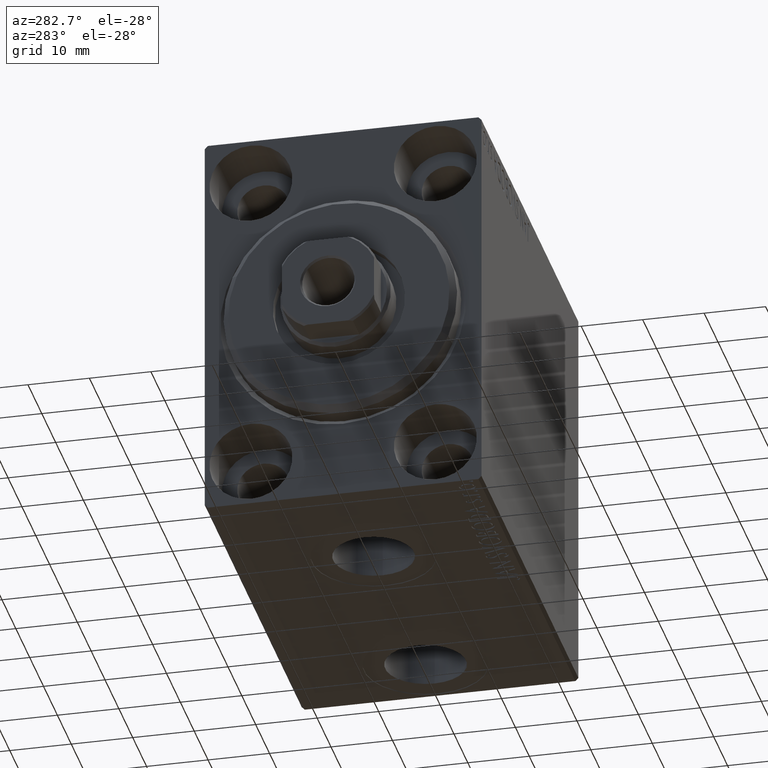
[diagram: clean part render]
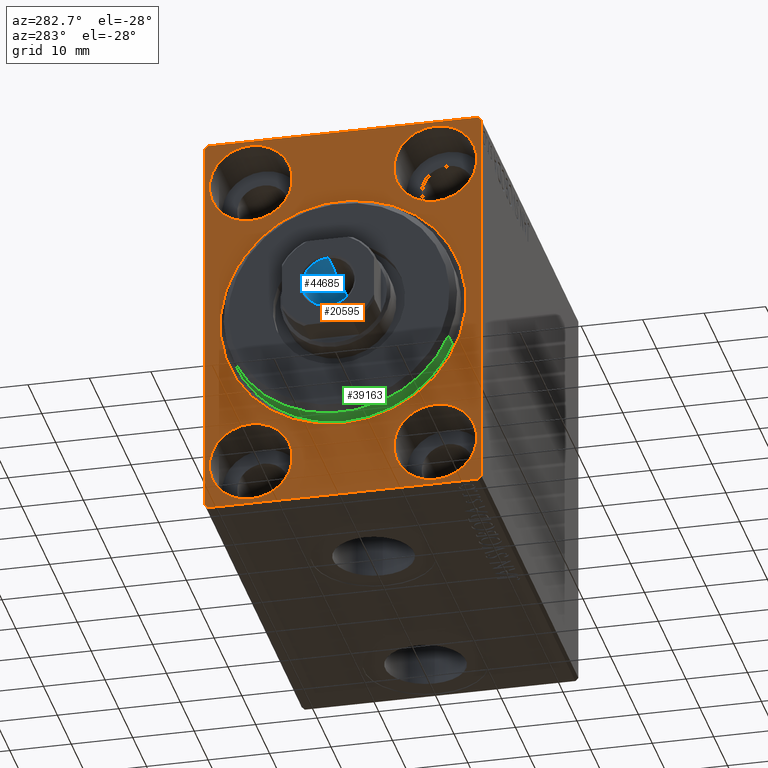
[diagram: same view with three faces highlighted in distinct colors, each labeled with its STEP entity id]
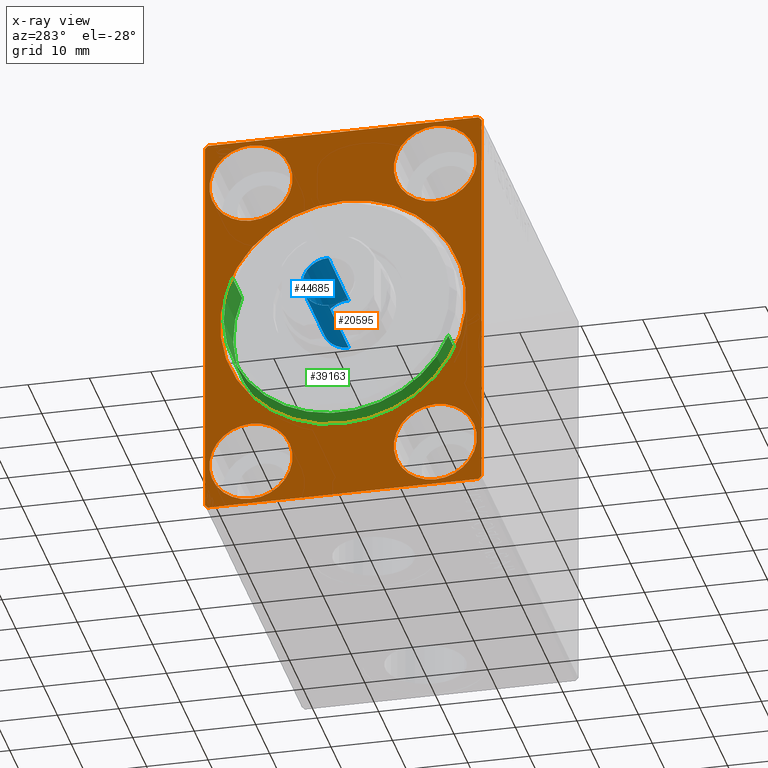
[diagram: x-ray of the same camera — body ghosted, the three highlighted faces saturated]
A machine part, auxiliary view with three faces highlighted in distinct colors.
The next image is the same camera in x-ray (body ghosted, the three faces saturated) — at least one of them is partly hidden behind the body in this view.
Their STEP definitions:

[orange] entity #20595 — the highlighted planar face has unit normal (1, 0, 0).
#25 = FACE_BOUND ( 'NONE', #13236, .T. ) ;
#105 = CARTESIAN_POINT ( 'NONE',  ( 0.000000000000000000, -22.50000000000000711, 32.49999999999999289 ) ) ;
#438 = VERTEX_POINT ( 'NONE', #30327 ) ;
#471 = ORIENTED_EDGE ( 'NONE', *, *, #28837, .T. ) ;
#764 = EDGE_CURVE ( 'NONE', #438, #13994, #29210, .T. ) ;
#775 = AXIS2_PLACEMENT_3D ( 'NONE', #10589, #24300, #31137 ) ;
#994 = VERTEX_POINT ( 'NONE', #13323 ) ;
#1001 = DIRECTION ( 'NONE',  ( 0.000000000000000000, 1.000000000000000000, 0.000000000000000000 ) ) ;
#1131 = AXIS2_PLACEMENT_3D ( 'NONE', #28490, #39896, #39226 ) ;
#1369 = ORIENTED_EDGE ( 'NONE', *, *, #23158, .F. ) ;
#1471 = EDGE_CURVE ( 'NONE', #14361, #9078, #20509, .T. ) ;
#1853 = ORIENTED_EDGE ( 'NONE', *, *, #44221, .F. ) ;
#2212 = CARTESIAN_POINT ( 'NONE',  ( 0.000000000000000000, -15.00000000000000355, -25.00000000000000000 ) ) ;
#2374 = VERTEX_POINT ( 'NONE', #3102 ) ;
#2830 = CARTESIAN_POINT ( 'NONE',  ( 0.000000000000000000, 14.99999999999999645, -25.00000000000000000 ) ) ;
#3009 = FACE_BOUND ( 'NONE', #25467, .T. ) ;
#3102 = CARTESIAN_POINT ( 'NONE',  ( 0.000000000000000000, 22.00000000000001421, -32.50000000000000711 ) ) ;
#3116 = VERTEX_POINT ( 'NONE', #16850 ) ;
#3797 = CIRCLE ( 'NONE', #5254, 6.749999999999999112 ) ;
#3972 = CARTESIAN_POINT ( 'NONE',  ( 0.000000000000000000, 22.50000000000000000, -32.00000000000002132 ) ) ;
#4108 = EDGE_CURVE ( 'NONE', #20190, #6602, #10938, .T. ) ;
#4603 = DIRECTION ( 'NONE',  ( 1.000000000000000000, 0.000000000000000000, 0.000000000000000000 ) ) ;
#4786 = CIRCLE ( 'NONE', #1131, 6.749999999999999112 ) ;
#4806 = CARTESIAN_POINT ( 'NONE',  ( 0.000000000000000000, 15.00000000000000355, 25.00000000000000000 ) ) ;
#4841 = LINE ( 'NONE', #8283, #14882 ) ;
#5165 = DIRECTION ( 'NONE',  ( -1.000000000000000000, 0.000000000000000000, 0.000000000000000000 ) ) ;
#5254 = AXIS2_PLACEMENT_3D ( 'NONE', #2830, #16787, #30704 ) ;
#5307 = CARTESIAN_POINT ( 'NONE',  ( 0.000000000000000000, 22.50000000000000000, -32.00000000000002132 ) ) ;
#5613 = CARTESIAN_POINT ( 'NONE',  ( 0.000000000000000000, 14.99999999999999645, -18.25000000000000355 ) ) ;
#5892 = DIRECTION ( 'NONE',  ( 0.000000000000000000, 0.000000000000000000, 1.000000000000000000 ) ) ;
#6124 = VECTOR ( 'NONE', #1001, 1000.000000000000000 ) ;
#6602 = VERTEX_POINT ( 'NONE', #35975 ) ;
#6914 = ORIENTED_EDGE ( 'NONE', *, *, #34521, .F. ) ;
#7119 = DIRECTION ( 'NONE',  ( 0.000000000000000000, 0.000000000000000000, -1.000000000000000000 ) ) ;
#7415 = CARTESIAN_POINT ( 'NONE',  ( 0.000000000000000000, -15.00000000000000355, -18.25000000000000355 ) ) ;
#7507 = CARTESIAN_POINT ( 'NONE',  ( 0.000000000000000000, -22.50000000000000711, 31.99999999999999289 ) ) ;
#8044 = CARTESIAN_POINT ( 'NONE',  ( 0.000000000000000000, 0.000000000000000000, 0.000000000000000000 ) ) ;
#8129 = VECTOR ( 'NONE', #21210, 1000.000000000000114 ) ;
#8283 = CARTESIAN_POINT ( 'NONE',  ( 0.000000000000000000, 21.99999999999999289, 32.50000000000000000 ) ) ;
#8906 = CARTESIAN_POINT ( 'NONE',  ( 0.000000000000000000, -14.99999999999999645, 31.75000000000000000 ) ) ;
#9032 = EDGE_LOOP ( 'NONE', ( #40806, #21583 ) ) ;
#9074 = CARTESIAN_POINT ( 'NONE',  ( 0.000000000000000000, -14.99999999999999645, 18.25000000000000355 ) ) ;
#9078 = VERTEX_POINT ( 'NONE', #7415 ) ;
#9104 = DIRECTION ( 'NONE',  ( 0.000000000000000000, 0.000000000000000000, 1.000000000000000000 ) ) ;
#9307 = LINE ( 'NONE', #12951, #10469 ) ;
#10369 = VERTEX_POINT ( 'NONE', #12145 ) ;
#10469 = VECTOR ( 'NONE', #16388, 1000.000000000000000 ) ;
#10565 = CARTESIAN_POINT ( 'NONE',  ( 0.000000000000000000, 0.000000000000000000, 0.000000000000000000 ) ) ;
#10589 = CARTESIAN_POINT ( 'NONE',  ( 0.000000000000000000, -15.00000000000000355, -25.00000000000000000 ) ) ;
#10592 = ORIENTED_EDGE ( 'NONE', *, *, #24514, .F. ) ;
#10938 = LINE ( 'NONE', #7507, #8129 ) ;
#11108 = LINE ( 'NONE', #20947, #40282 ) ;
#11742 = ORIENTED_EDGE ( 'NONE', *, *, #17766, .F. ) ;
#12145 = CARTESIAN_POINT ( 'NONE',  ( 0.000000000000000000, -22.00000000000002132, -32.50000000000000711 ) ) ;
#12450 = EDGE_LOOP ( 'NONE', ( #25846, #12895, #12823, #22496, #33010, #20453, #1853, #471 ) ) ;
#12823 = ORIENTED_EDGE ( 'NONE', *, *, #35278, .F. ) ;
#12895 = ORIENTED_EDGE ( 'NONE', *, *, #4108, .T. ) ;
#12951 = CARTESIAN_POINT ( 'NONE',  ( 0.000000000000000000, -22.00000000000002132, -32.50000000000000711 ) ) ;
#13217 = EDGE_CURVE ( 'NONE', #14030, #2374, #35275, .T. ) ;
#13236 = EDGE_LOOP ( 'NONE', ( #43657, #6914 ) ) ;
#13323 = CARTESIAN_POINT ( 'NONE',  ( 0.000000000000000000, -22.50000000000000711, -32.00000000000000711 ) ) ;
#13959 = CIRCLE ( 'NONE', #38765, 6.749999999999999112 ) ;
#13994 = VERTEX_POINT ( 'NONE', #5613 ) ;
#14030 = VERTEX_POINT ( 'NONE', #5307 ) ;
#14051 = AXIS2_PLACEMENT_3D ( 'NONE', #33043, #5165, #33268 ) ;
#14361 = VERTEX_POINT ( 'NONE', #44809 ) ;
#14720 = DIRECTION ( 'NONE',  ( 0.000000000000000000, 0.000000000000000000, -1.000000000000000000 ) ) ;
#14751 = DIRECTION ( 'NONE',  ( 0.000000000000000000, -1.067522139062650425E-16, 1.000000000000000000 ) ) ;
#14794 = CARTESIAN_POINT ( 'NONE',  ( 0.000000000000000000, 0.000000000000000000, 20.00000000000000355 ) ) ;
#14882 = VECTOR ( 'NONE', #43000, 999.9999999999998863 ) ;
#15603 = AXIS2_PLACEMENT_3D ( 'NONE', #17468, #21327, #38021 ) ;
#15636 = LINE ( 'NONE', #26137, #6124 ) ;
#16388 = DIRECTION ( 'NONE',  ( -0.000000000000000000, -0.7071067811865378028, 0.7071067811865573427 ) ) ;
#16787 = DIRECTION ( 'NONE',  ( -1.000000000000000000, 0.000000000000000000, 0.000000000000000000 ) ) ;
#16850 = CARTESIAN_POINT ( 'NONE',  ( 0.000000000000000000, 22.49999999999999289, 31.99999999999999289 ) ) ;
#17468 = CARTESIAN_POINT ( 'NONE',  ( 0.000000000000000000, 0.000000000000000000, 0.000000000000000000 ) ) ;
#17587 = CIRCLE ( 'NONE', #44584, 6.749999999999999112 ) ;
#17766 = EDGE_CURVE ( 'NONE', #9078, #14361, #17587, .T. ) ;
#17770 = CIRCLE ( 'NONE', #25775, 20.00000000000000355 ) ;
#18504 = EDGE_CURVE ( 'NONE', #30342, #42224, #13959, .T. ) ;
#18557 = DIRECTION ( 'NONE',  ( 0.000000000000000000, 0.000000000000000000, -1.000000000000000000 ) ) ;
#18755 = DIRECTION ( 'NONE',  ( -1.000000000000000000, 0.000000000000000000, 0.000000000000000000 ) ) ;
#19018 = AXIS2_PLACEMENT_3D ( 'NONE', #42356, #24779, #31844 ) ;
#20120 = VECTOR ( 'NONE', #36020, 1000.000000000000000 ) ;
#20190 = VERTEX_POINT ( 'NONE', #37345 ) ;
#20453 = ORIENTED_EDGE ( 'NONE', *, *, #13217, .T. ) ;
#20455 = DIRECTION ( 'NONE',  ( 0.000000000000000000, -0.7071067811865376918, -0.7071067811865573427 ) ) ;
#20509 = CIRCLE ( 'NONE', #775, 6.749999999999999112 ) ;
#20595 = ADVANCED_FACE ( 'NONE', ( #34313, #31339, #37754, #25, #3009, #27919 ), #41186, .F. ) ;
#20706 = CARTESIAN_POINT ( 'NONE',  ( 0.000000000000000000, -14.99999999999999645, 25.00000000000000000 ) ) ;
#20947 = CARTESIAN_POINT ( 'NONE',  ( 0.000000000000000000, 22.50000000000000000, -32.50000000000000711 ) ) ;
#21210 = DIRECTION ( 'NONE',  ( -0.000000000000000000, 0.7071067811865474617, 0.7071067811865474617 ) ) ;
#21327 = DIRECTION ( 'NONE',  ( 1.000000000000000000, 0.000000000000000000, 0.000000000000000000 ) ) ;
#21583 = ORIENTED_EDGE ( 'NONE', *, *, #30070, .T. ) ;
#22312 = CIRCLE ( 'NONE', #30372, 6.749999999999999112 ) ;
#22433 = EDGE_CURVE ( 'NONE', #20190, #994, #38716, .T. ) ;
#22496 = ORIENTED_EDGE ( 'NONE', *, *, #30267, .T. ) ;
#23158 = EDGE_CURVE ( 'NONE', #43860, #29714, #33738, .T. ) ;
#23699 = DIRECTION ( 'NONE',  ( 0.000000000000000000, 0.000000000000000000, 1.000000000000000000 ) ) ;
#24300 = DIRECTION ( 'NONE',  ( -1.000000000000000000, 0.000000000000000000, 0.000000000000000000 ) ) ;
#24514 = EDGE_CURVE ( 'NONE', #13994, #438, #3797, .T. ) ;
#24548 = VERTEX_POINT ( 'NONE', #27962 ) ;
#24688 = CARTESIAN_POINT ( 'NONE',  ( 0.000000000000000000, 21.99999999999999289, 32.50000000000000000 ) ) ;
#24750 = VECTOR ( 'NONE', #20455, 1000.000000000000114 ) ;
#24779 = DIRECTION ( 'NONE',  ( -1.000000000000000000, 0.000000000000000000, 0.000000000000000000 ) ) ;
#25467 = EDGE_LOOP ( 'NONE', ( #11742, #34260 ) ) ;
#25775 = AXIS2_PLACEMENT_3D ( 'NONE', #8044, #4603, #18557 ) ;
#25846 = ORIENTED_EDGE ( 'NONE', *, *, #22433, .F. ) ;
#26137 = CARTESIAN_POINT ( 'NONE',  ( 0.000000000000000000, -22.50000000000000711, -32.50000000000000711 ) ) ;
#26995 = EDGE_CURVE ( 'NONE', #14030, #3116, #11108, .T. ) ;
#27919 = FACE_OUTER_BOUND ( 'NONE', #12450, .T. ) ;
#27962 = CARTESIAN_POINT ( 'NONE',  ( 0.000000000000000000, 2.449293598294706907E-15, -20.00000000000000355 ) ) ;
#28490 = CARTESIAN_POINT ( 'NONE',  ( 0.000000000000000000, 15.00000000000000355, 25.00000000000000000 ) ) ;
#28664 = VERTEX_POINT ( 'NONE', #14794 ) ;
#28837 = EDGE_CURVE ( 'NONE', #10369, #994, #9307, .T. ) ;
#28944 = CARTESIAN_POINT ( 'NONE',  ( 0.000000000000000000, 22.49999999999999289, 32.50000000000000000 ) ) ;
#29210 = CIRCLE ( 'NONE', #19018, 6.749999999999999112 ) ;
#29291 = EDGE_CURVE ( 'NONE', #28664, #24548, #17770, .T. ) ;
#29637 = DIRECTION ( 'NONE',  ( -1.000000000000000000, 0.000000000000000000, 0.000000000000000000 ) ) ;
#29714 = VERTEX_POINT ( 'NONE', #8906 ) ;
#30070 = EDGE_CURVE ( 'NONE', #24548, #28664, #44823, .T. ) ;
#30267 = EDGE_CURVE ( 'NONE', #34157, #3116, #4841, .T. ) ;
#30327 = CARTESIAN_POINT ( 'NONE',  ( 0.000000000000000000, 14.99999999999999645, -31.75000000000000000 ) ) ;
#30342 = VERTEX_POINT ( 'NONE', #40487 ) ;
#30372 = AXIS2_PLACEMENT_3D ( 'NONE', #20706, #41047, #23699 ) ;
#30704 = DIRECTION ( 'NONE',  ( 0.000000000000000000, 0.000000000000000000, 1.000000000000000000 ) ) ;
#31137 = DIRECTION ( 'NONE',  ( 0.000000000000000000, 0.000000000000000000, 1.000000000000000000 ) ) ;
#31339 = FACE_BOUND ( 'NONE', #44550, .T. ) ;
#31844 = DIRECTION ( 'NONE',  ( 0.000000000000000000, 0.000000000000000000, 1.000000000000000000 ) ) ;
#32220 = AXIS2_PLACEMENT_3D ( 'NONE', #10565, #38423, #7119 ) ;
#33010 = ORIENTED_EDGE ( 'NONE', *, *, #26995, .F. ) ;
#33043 = CARTESIAN_POINT ( 'NONE',  ( 0.000000000000000000, -14.99999999999999645, 25.00000000000000000 ) ) ;
#33195 = CARTESIAN_POINT ( 'NONE',  ( 0.000000000000000000, 15.00000000000000355, 18.25000000000000355 ) ) ;
#33268 = DIRECTION ( 'NONE',  ( 0.000000000000000000, 0.000000000000000000, 1.000000000000000000 ) ) ;
#33559 = ORIENTED_EDGE ( 'NONE', *, *, #764, .F. ) ;
#33738 = CIRCLE ( 'NONE', #14051, 6.749999999999999112 ) ;
#34157 = VERTEX_POINT ( 'NONE', #24688 ) ;
#34260 = ORIENTED_EDGE ( 'NONE', *, *, #1471, .F. ) ;
#34313 = FACE_BOUND ( 'NONE', #9032, .T. ) ;
#34521 = EDGE_CURVE ( 'NONE', #42224, #30342, #4786, .T. ) ;
#35252 = EDGE_LOOP ( 'NONE', ( #40657, #1369 ) ) ;
#35275 = LINE ( 'NONE', #3972, #24750 ) ;
#35278 = EDGE_CURVE ( 'NONE', #34157, #6602, #43555, .T. ) ;
#35975 = CARTESIAN_POINT ( 'NONE',  ( 0.000000000000000000, -21.99999999999999289, 32.49999999999999289 ) ) ;
#36020 = DIRECTION ( 'NONE',  ( 0.000000000000000000, -1.000000000000000000, -1.541976423090495387E-16 ) ) ;
#36366 = EDGE_CURVE ( 'NONE', #29714, #43860, #22312, .T. ) ;
#37345 = CARTESIAN_POINT ( 'NONE',  ( 0.000000000000000000, -22.50000000000000711, 31.99999999999999289 ) ) ;
#37754 = FACE_BOUND ( 'NONE', #35252, .T. ) ;
#38021 = DIRECTION ( 'NONE',  ( 0.000000000000000000, 0.000000000000000000, -1.000000000000000000 ) ) ;
#38423 = DIRECTION ( 'NONE',  ( 1.000000000000000000, 0.000000000000000000, 0.000000000000000000 ) ) ;
#38716 = LINE ( 'NONE', #105, #41778 ) ;
#38765 = AXIS2_PLACEMENT_3D ( 'NONE', #4806, #18755, #5892 ) ;
#39226 = DIRECTION ( 'NONE',  ( 0.000000000000000000, 0.000000000000000000, 1.000000000000000000 ) ) ;
#39896 = DIRECTION ( 'NONE',  ( -1.000000000000000000, 0.000000000000000000, 0.000000000000000000 ) ) ;
#40282 = VECTOR ( 'NONE', #14751, 1000.000000000000000 ) ;
#40487 = CARTESIAN_POINT ( 'NONE',  ( 0.000000000000000000, 15.00000000000000355, 31.75000000000000000 ) ) ;
#40657 = ORIENTED_EDGE ( 'NONE', *, *, #36366, .F. ) ;
#40806 = ORIENTED_EDGE ( 'NONE', *, *, #29291, .T. ) ;
#41047 = DIRECTION ( 'NONE',  ( -1.000000000000000000, 0.000000000000000000, 0.000000000000000000 ) ) ;
#41186 = PLANE ( 'NONE',  #32220 ) ;
#41778 = VECTOR ( 'NONE', #14720, 1000.000000000000000 ) ;
#42224 = VERTEX_POINT ( 'NONE', #33195 ) ;
#42356 = CARTESIAN_POINT ( 'NONE',  ( 0.000000000000000000, 14.99999999999999645, -25.00000000000000000 ) ) ;
#43000 = DIRECTION ( 'NONE',  ( -0.000000000000000000, 0.7071067811865425767, -0.7071067811865525687 ) ) ;
#43555 = LINE ( 'NONE', #28944, #20120 ) ;
#43657 = ORIENTED_EDGE ( 'NONE', *, *, #18504, .F. ) ;
#43860 = VERTEX_POINT ( 'NONE', #9074 ) ;
#44221 = EDGE_CURVE ( 'NONE', #10369, #2374, #15636, .T. ) ;
#44550 = EDGE_LOOP ( 'NONE', ( #10592, #33559 ) ) ;
#44584 = AXIS2_PLACEMENT_3D ( 'NONE', #2212, #29637, #9104 ) ;
#44809 = CARTESIAN_POINT ( 'NONE',  ( 0.000000000000000000, -15.00000000000000355, -31.75000000000000000 ) ) ;
#44823 = CIRCLE ( 'NONE', #15603, 20.00000000000000355 ) ;

[blue] entity #44685 — the highlighted cylindrical surface (edge-blend (fillet) strip) has radius 4.25 mm, axis along (-1, 0, 0).
#1351 = VERTEX_POINT ( 'NONE', #32573 ) ;
#2185 = DIRECTION ( 'NONE',  ( -0.000000000000000000, -0.000000000000000000, 1.000000000000000000 ) ) ;
#2346 = VECTOR ( 'NONE', #2185, 1000.000000000000000 ) ;
#3085 = DIRECTION ( 'NONE',  ( -0.000000000000000000, -0.000000000000000000, 1.000000000000000000 ) ) ;
#4715 = CARTESIAN_POINT ( 'NONE',  ( 4.249999999999997335, 0.000000000000000000, 75.00000000000001421 ) ) ;
#10596 = VECTOR ( 'NONE', #3085, 1000.000000000000000 ) ;
#13160 = DIRECTION ( 'NONE',  ( 1.000000000000000000, 0.000000000000000000, 0.000000000000000000 ) ) ;
#16990 = DIRECTION ( 'NONE',  ( 1.000000000000000000, 0.000000000000000000, 0.000000000000000000 ) ) ;
#17897 = VERTEX_POINT ( 'NONE', #38761 ) ;
#18635 = CIRCLE ( 'NONE', #19350, 4.249999999999997335 ) ;
#19350 = AXIS2_PLACEMENT_3D ( 'NONE', #30449, #30917, #16990 ) ;
#23121 = EDGE_CURVE ( 'NONE', #1351, #43984, #33491, .T. ) ;
#25036 = CIRCLE ( 'NONE', #42537, 4.249999999999996447 ) ;
#26240 = DIRECTION ( 'NONE',  ( -0.000000000000000000, -0.000000000000000000, 1.000000000000000000 ) ) ;
#26711 = FACE_OUTER_BOUND ( 'NONE', #36904, .T. ) ;
#28205 = VERTEX_POINT ( 'NONE', #40978 ) ;
#30449 = CARTESIAN_POINT ( 'NONE',  ( 0.000000000000000000, 0.000000000000000000, 74.70000000000001705 ) ) ;
#30917 = DIRECTION ( 'NONE',  ( 0.000000000000000000, 0.000000000000000000, 1.000000000000000000 ) ) ;
#32036 = ORIENTED_EDGE ( 'NONE', *, *, #43059, .F. ) ;
#32573 = CARTESIAN_POINT ( 'NONE',  ( 4.249999999999996447, 0.000000000000000000, 60.00000000000001421 ) ) ;
#33473 = EDGE_CURVE ( 'NONE', #17897, #28205, #44459, .T. ) ;
#33491 = LINE ( 'NONE', #4715, #2346 ) ;
#33722 = EDGE_CURVE ( 'NONE', #43984, #28205, #18635, .T. ) ;
#33947 = DIRECTION ( 'NONE',  ( -0.000000000000000000, -0.000000000000000000, 1.000000000000000000 ) ) ;
#34180 = CARTESIAN_POINT ( 'NONE',  ( 4.249999999999997335, 0.000000000000000000, 74.70000000000001705 ) ) ;
#36251 = ORIENTED_EDGE ( 'NONE', *, *, #33722, .T. ) ;
#36904 = EDGE_LOOP ( 'NONE', ( #44408, #32036, #43142, #36251 ) ) ;
#37374 = CARTESIAN_POINT ( 'NONE',  ( 0.000000000000000000, 0.000000000000000000, 60.00000000000001421 ) ) ;
#38049 = CARTESIAN_POINT ( 'NONE',  ( -4.249999999999997335, 5.204748896376248727E-16, 75.00000000000001421 ) ) ;
#38761 = CARTESIAN_POINT ( 'NONE',  ( -4.249999999999996447, 5.204748896376247741E-16, 60.00000000000001421 ) ) ;
#40418 = AXIS2_PLACEMENT_3D ( 'NONE', #41100, #26240, #44525 ) ;
#40978 = CARTESIAN_POINT ( 'NONE',  ( -4.249999999999997335, 5.204748896376248727E-16, 74.70000000000001705 ) ) ;
#41100 = CARTESIAN_POINT ( 'NONE',  ( 0.000000000000000000, 0.000000000000000000, 75.00000000000001421 ) ) ;
#42537 = AXIS2_PLACEMENT_3D ( 'NONE', #37374, #33947, #13160 ) ;
#43059 = EDGE_CURVE ( 'NONE', #1351, #17897, #25036, .T. ) ;
#43142 = ORIENTED_EDGE ( 'NONE', *, *, #23121, .T. ) ;
#43825 = CYLINDRICAL_SURFACE ( 'NONE', #40418, 4.249999999999997335 ) ;
#43984 = VERTEX_POINT ( 'NONE', #34180 ) ;
#44408 = ORIENTED_EDGE ( 'NONE', *, *, #33473, .F. ) ;
#44459 = LINE ( 'NONE', #38049, #10596 ) ;
#44525 = DIRECTION ( 'NONE',  ( 1.000000000000000000, 0.000000000000000000, 0.000000000000000000 ) ) ;
#44685 = ADVANCED_FACE ( 'NONE', ( #26711 ), #43825, .F. ) ;

[green] entity #39163 — the highlighted cylindrical surface (partial cylindrical patch) has radius 19 mm, axis along (1, 0, 0).
#2072 = DIRECTION ( 'NONE',  ( 0.000000000000000000, 0.000000000000000000, 1.000000000000000000 ) ) ;
#3081 = CIRCLE ( 'NONE', #21314, 19.00000000000000000 ) ;
#3548 = CARTESIAN_POINT ( 'NONE',  ( -5.000000000000000000, 2.326828918379970970E-15, -19.00000000000000000 ) ) ;
#4577 = DIRECTION ( 'NONE',  ( -1.000000000000000000, -0.000000000000000000, -0.000000000000000000 ) ) ;
#4911 = DIRECTION ( 'NONE',  ( 0.000000000000000000, 0.000000000000000000, 1.000000000000000000 ) ) ;
#7441 = LINE ( 'NONE', #32536, #10732 ) ;
#8582 = CARTESIAN_POINT ( 'NONE',  ( 1.999999999999992228, 0.000000000000000000, 0.000000000000000000 ) ) ;
#8958 = DIRECTION ( 'NONE',  ( -1.000000000000000000, 0.000000000000000000, 0.000000000000000000 ) ) ;
#9934 = ORIENTED_EDGE ( 'NONE', *, *, #37294, .T. ) ;
#10732 = VECTOR ( 'NONE', #38970, 1000.000000000000000 ) ;
#12132 = VERTEX_POINT ( 'NONE', #28854 ) ;
#12375 = EDGE_CURVE ( 'NONE', #39720, #29010, #42746, .T. ) ;
#12635 = CIRCLE ( 'NONE', #27941, 19.00000000000000000 ) ;
#14214 = CARTESIAN_POINT ( 'NONE',  ( 3.000000000000000000, 0.000000000000000000, 19.00000000000000000 ) ) ;
#14248 = ORIENTED_EDGE ( 'NONE', *, *, #21005, .T. ) ;
#14531 = VECTOR ( 'NONE', #4577, 1000.000000000000000 ) ;
#15552 = CARTESIAN_POINT ( 'NONE',  ( 1.999999999999992228, 0.000000000000000000, 19.00000000000000000 ) ) ;
#16121 = CARTESIAN_POINT ( 'NONE',  ( 3.000000000000000000, 0.000000000000000000, 0.000000000000000000 ) ) ;
#16687 = AXIS2_PLACEMENT_3D ( 'NONE', #16121, #19086, #4911 ) ;
#18640 = DIRECTION ( 'NONE',  ( 0.000000000000000000, 0.000000000000000000, -1.000000000000000000 ) ) ;
#19046 = ORIENTED_EDGE ( 'NONE', *, *, #24005, .F. ) ;
#19086 = DIRECTION ( 'NONE',  ( -1.000000000000000000, -0.000000000000000000, -0.000000000000000000 ) ) ;
#19310 = CYLINDRICAL_SURFACE ( 'NONE', #16687, 19.00000000000000000 ) ;
#21005 = EDGE_CURVE ( 'NONE', #39720, #12132, #3081, .T. ) ;
#21314 = AXIS2_PLACEMENT_3D ( 'NONE', #8582, #25489, #18640 ) ;
#23569 = EDGE_LOOP ( 'NONE', ( #14248, #9934, #19046, #30478 ) ) ;
#24005 = EDGE_CURVE ( 'NONE', #29010, #36338, #12635, .T. ) ;
#25489 = DIRECTION ( 'NONE',  ( -1.000000000000000000, 0.000000000000000000, 0.000000000000000000 ) ) ;
#27941 = AXIS2_PLACEMENT_3D ( 'NONE', #30881, #8958, #2072 ) ;
#28854 = CARTESIAN_POINT ( 'NONE',  ( 1.999999999999992228, 2.326828918379970970E-15, -19.00000000000000000 ) ) ;
#29010 = VERTEX_POINT ( 'NONE', #44421 ) ;
#30478 = ORIENTED_EDGE ( 'NONE', *, *, #12375, .F. ) ;
#30881 = CARTESIAN_POINT ( 'NONE',  ( -5.000000000000000000, 0.000000000000000000, 0.000000000000000000 ) ) ;
#32536 = CARTESIAN_POINT ( 'NONE',  ( 3.000000000000000000, 2.326828918379970970E-15, -19.00000000000000000 ) ) ;
#36338 = VERTEX_POINT ( 'NONE', #3548 ) ;
#37294 = EDGE_CURVE ( 'NONE', #12132, #36338, #7441, .T. ) ;
#38970 = DIRECTION ( 'NONE',  ( -1.000000000000000000, -0.000000000000000000, -0.000000000000000000 ) ) ;
#39163 = ADVANCED_FACE ( 'NONE', ( #40096 ), #19310, .T. ) ;
#39720 = VERTEX_POINT ( 'NONE', #15552 ) ;
#40096 = FACE_OUTER_BOUND ( 'NONE', #23569, .T. ) ;
#42746 = LINE ( 'NONE', #14214, #14531 ) ;
#44421 = CARTESIAN_POINT ( 'NONE',  ( -5.000000000000000000, 0.000000000000000000, 19.00000000000000000 ) ) ;